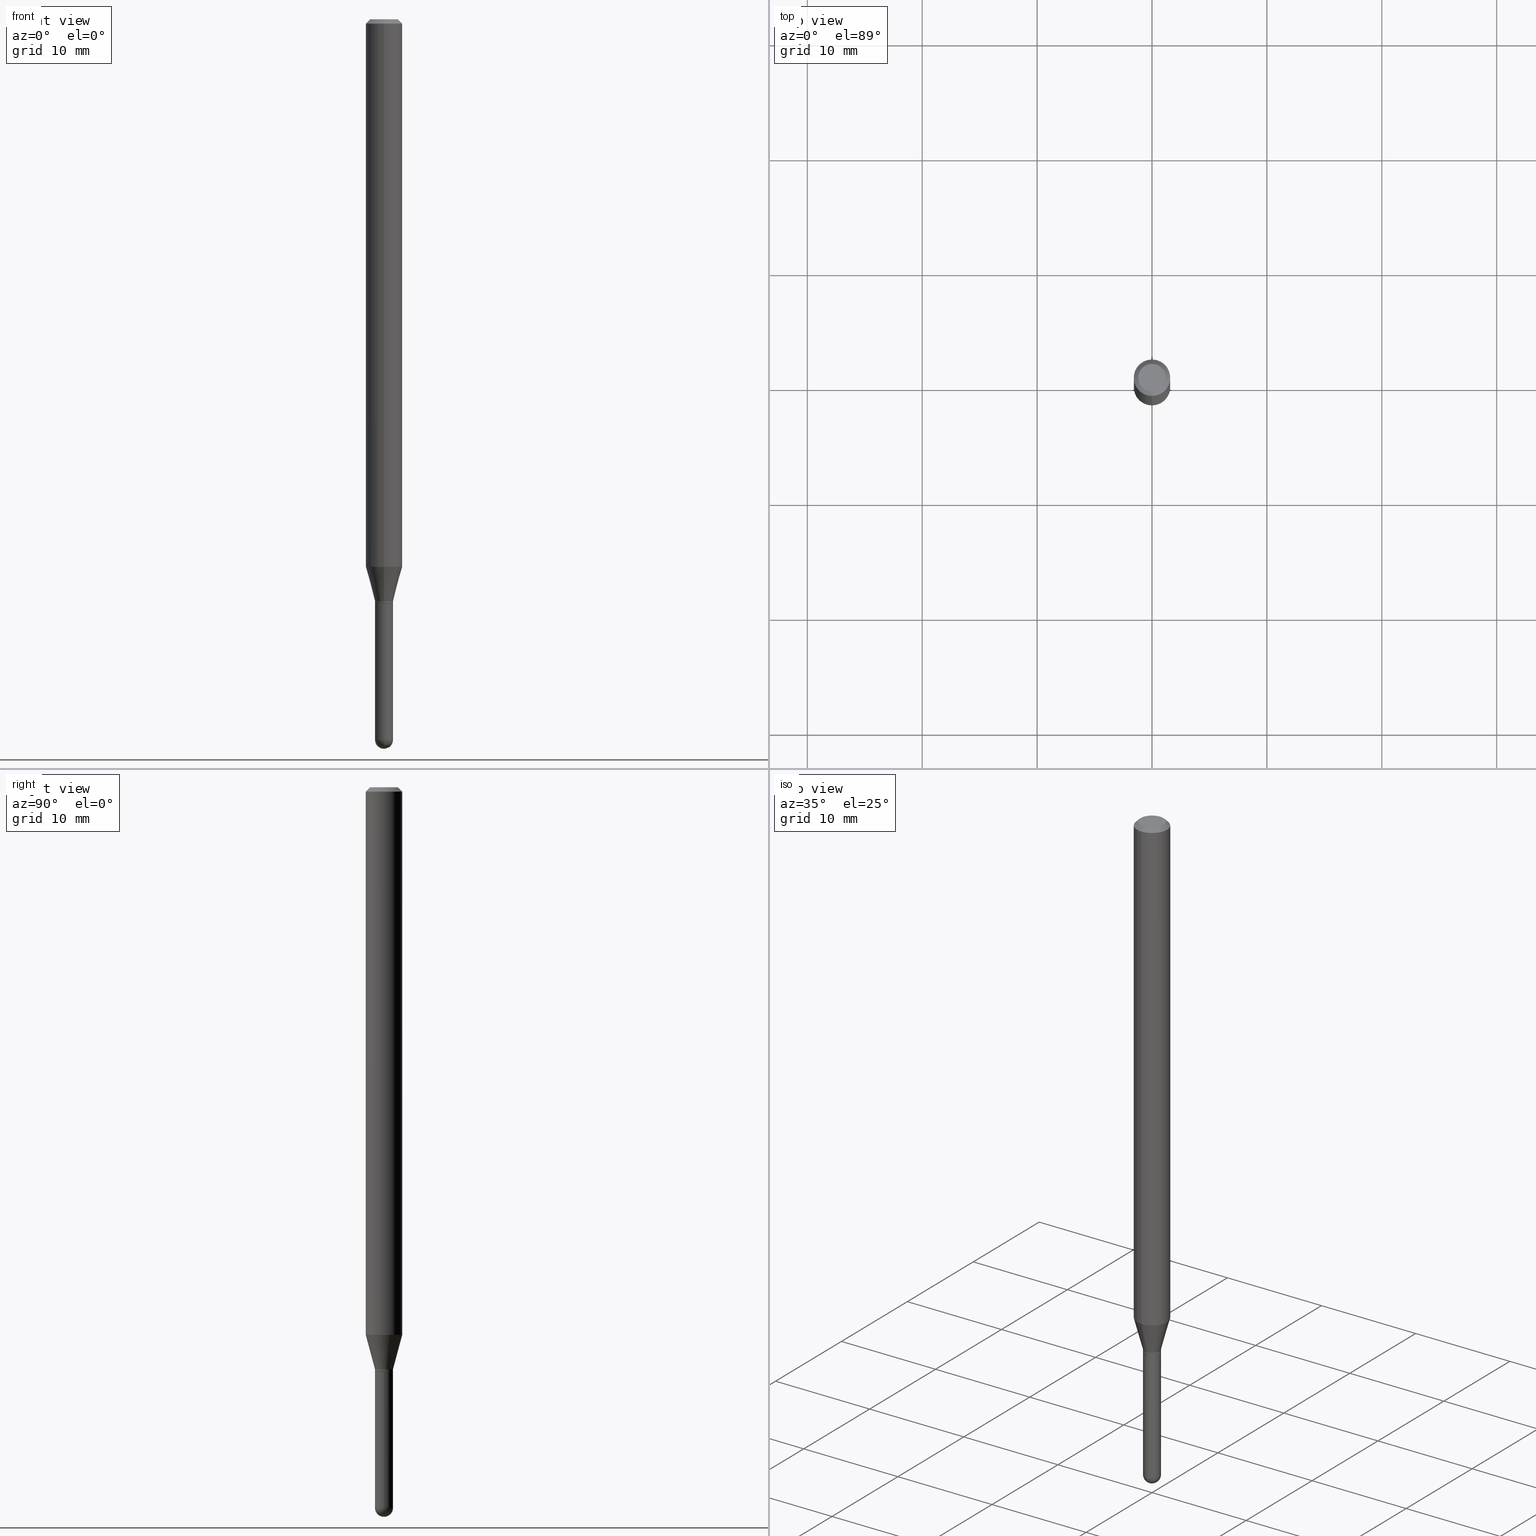
[diagram: canonical four-view strip — front | top / right | iso, engineering-drawing reading convention]
A machine part, canonical four-view strip (front | top / right | iso — engineering-drawing reading convention). The complete STEP part file that produces these views, byte-faithful:
ISO-10303-21;
HEADER;
FILE_DESCRIPTION (( 'STEP AP203' ),
    '1' );
FILE_NAME ('02760.STEP',
    '2024-03-07T21:17:46',
    ( '' ),
    ( '' ),
    'SwSTEP 2.0',
    'SolidWorks 2023',
    '' );
FILE_SCHEMA (( 'CONFIG_CONTROL_DESIGN' ));
ENDSEC;

DATA;
#1 = CYLINDRICAL_SURFACE ( 'NONE', #73, 0.03099999999999992345 ) ;
#2 = DIRECTION ( 'NONE',  ( -1.807323732225332900E-15, -0.2588190451025185745, 0.9659258262890687563 ) ) ;
#3 = DIRECTION ( 'NONE',  ( -6.982962677686265922E-15, -1.000000000000000000, 3.491454242934258058E-15 ) ) ;
#4 = PRODUCT_RELATED_PRODUCT_CATEGORY ( 'detail', '', ( #23 ) ) ;
#5 = VERTEX_POINT ( 'NONE', #381 ) ;
#6 = CARTESIAN_POINT ( 'NONE',  ( 4.440892098501086659E-16, 0.06249999999999995143, -0.01500000000000054588 ) ) ;
#7 = ORIENTED_EDGE ( 'NONE', *, *, #295, .F. ) ;
#8 = AXIS2_PLACEMENT_3D ( 'NONE', #331, #324, #288 ) ;
#9 = AXIS2_PLACEMENT_3D ( 'NONE', #453, #378, #168 ) ;
#10 = DIRECTION ( 'NONE',  ( -2.445487727157184273E-29, 3.491454242934258452E-15, 1.000000000000000000 ) ) ;
#11 = ORIENTED_EDGE ( 'NONE', *, *, #475, .T. ) ;
#12 = EDGE_LOOP ( 'NONE', ( #176, #294, #62, #485 ) ) ;
#13 = DIRECTION ( 'NONE',  ( -6.982962677686265922E-15, -1.000000000000000000, 3.483106191921935554E-15 ) ) ;
#14 = EDGE_LOOP ( 'NONE', ( #95, #376, #348, #217 ) ) ;
#15 = EDGE_CURVE ( 'NONE', #289, #126, #379, .T. ) ;
#16 = ADVANCED_BREP_SHAPE_REPRESENTATION ( '02760', ( #178, #340, #181 ), #396 ) ;
#17 = AXIS2_PLACEMENT_3D ( 'NONE', #145, #296, #384 ) ;
#18 = CIRCLE ( 'NONE', #163, 0.03049999999999999586 ) ;
#19 = DIRECTION ( 'NONE',  ( -2.445468806185136877E-29, 3.491481338843145188E-15, 1.000000000000000000 ) ) ;
#20 = VERTEX_POINT ( 'NONE', #99 ) ;
#21 = PERSON_AND_ORGANIZATION_ROLE ( 'classification_officer' ) ;
#22 = DIRECTION ( 'NONE',  ( -6.982962677686265922E-15, -1.000000000000000000, 3.491454242934258847E-15 ) ) ;
#23 = PRODUCT ( '02760', '02760', '', ( #272 ) ) ;
#24 = COORDINATED_UNIVERSAL_TIME_OFFSET ( 5, 0, .BEHIND. ) ;
#25 = AXIS2_PLACEMENT_3D ( 'NONE', #321, #201, #127 ) ;
#26 = AXIS2_PLACEMENT_3D ( 'NONE', #478, #207, #358 ) ;
#27 = DATE_AND_TIME ( #141, #209 ) ;
#28 = VERTEX_POINT ( 'NONE', #422 ) ;
#29 = CARTESIAN_POINT ( 'NONE',  ( -4.364351673553912750E-16, -0.06250000000000005551, -0.01500000000000011047 ) ) ;
#30 = DIRECTION ( 'NONE',  ( 1.000000000000000000, -6.982962677686266711E-15, 4.876176775795935232E-29 ) ) ;
#31 = EDGE_CURVE ( 'NONE', #20, #243, #341, .T. ) ;
#32 = PERSON_AND_ORGANIZATION_ROLE ( 'design_supplier' ) ;
#33 = DATE_AND_TIME ( #388, #452 ) ;
#34 = AXIS2_PLACEMENT_3D ( 'NONE', #312, #345, #504 ) ;
#35 = LOCAL_TIME ( 16, 17, 46.00000000000000000, #24 ) ;
#36 = EDGE_LOOP ( 'NONE', ( #298, #233 ) ) ;
#37 = EDGE_CURVE ( 'NONE', #339, #20, #263, .T. ) ;
#38 = DIRECTION ( 'NONE',  ( -6.982962677686265922E-15, -1.000000000000000000, 3.491454242934258452E-15 ) ) ;
#39 = DIRECTION ( 'NONE',  ( -6.982962677686265922E-15, -1.000000000000000000, 0.000000000000000000 ) ) ;
#40 = CARTESIAN_POINT ( 'NONE',  ( 4.900757405222998311E-29, -6.996874302840255482E-15, -2.004000000000000448 ) ) ;
#41 = LINE ( 'NONE', #189, #268 ) ;
#42 = DIRECTION ( 'NONE',  ( -6.982962677686265922E-15, -1.000000000000000000, 0.000000000000000000 ) ) ;
#43 = ORGANIZATION ( 'UNSPECIFIED', 'UNSPECIFIED', '' ) ;
#44 = CARTESIAN_POINT ( 'NONE',  ( 4.876302527951425860E-29, -6.961959760410912195E-15, -1.993999999999999995 ) ) ;
#45 = DIRECTION ( 'NONE',  ( -6.982962677686265922E-15, -1.000000000000000000, 3.491454242934258058E-15 ) ) ;
#46 = DIRECTION ( 'NONE',  ( 1.000000000000000000, -6.982962677686265922E-15, 4.883557194083112340E-29 ) ) ;
#47 = CARTESIAN_POINT ( 'NONE',  ( 2.202682480856811734E-16, 0.03099999999999323436, -1.993999999999999995 ) ) ;
#48 = ORIENTED_EDGE ( 'NONE', *, *, #37, .F. ) ;
#49 = ADVANCED_FACE ( 'NONE', ( #80 ), #239, .T. ) ;
#50 = LINE ( 'NONE', #412, #387 ) ;
#51 = CARTESIAN_POINT ( 'NONE',  ( 6.037862482471103495E-29, -8.620467425603728566E-15, -2.469000000000000306 ) ) ;
#52 = ORIENTED_EDGE ( 'NONE', *, *, #437, .F. ) ;
#53 = DIRECTION ( 'NONE',  ( 5.024295867785445738E-15, 0.7071067811861817543, 0.7071067811869132802 ) ) ;
#54 = CC_DESIGN_SECURITY_CLASSIFICATION ( #434, ( #512 ) ) ;
#55 = VERTEX_POINT ( 'NONE', #158 ) ;
#56 = ADVANCED_FACE ( 'NONE', ( #439 ), #245, .F. ) ;
#57 = ORIENTED_EDGE ( 'NONE', *, *, #462, .T. ) ;
#58 = DIRECTION ( 'NONE',  ( -2.445487727157184273E-29, 3.491454242934258452E-15, 1.000000000000000000 ) ) ;
#59 = CIRCLE ( 'NONE', #351, 0.03099999999999960773 ) ;
#60 = APPROVAL_PERSON_ORGANIZATION ( #313, #314, #471 ) ;
#61 = FACE_OUTER_BOUND ( 'NONE', #409, .T. ) ;
#62 = ORIENTED_EDGE ( 'NONE', *, *, #37, .T. ) ;
#63 = DATE_AND_TIME ( #509, #222 ) ;
#64 = ORIENTED_EDGE ( 'NONE', *, *, #129, .T. ) ;
#65 = AXIS2_PLACEMENT_3D ( 'NONE', #130, #82, #364 ) ;
#66 = CC_DESIGN_APPROVAL ( #149, ( #434 ) ) ;
#67 = PLANE ( 'NONE',  #116 ) ;
#68 = COORDINATED_UNIVERSAL_TIME_OFFSET ( 5, 0, .BEHIND. ) ;
#69 = DIRECTION ( 'NONE',  ( -2.445487727157184273E-29, 3.491454242934258452E-15, 1.000000000000000000 ) ) ;
#70 = EDGE_CURVE ( 'NONE', #323, #28, #98, .T. ) ;
#71 = DIRECTION ( 'NONE',  ( -6.982962677686266711E-15, -1.000000000000000000, 3.491454242934259241E-15 ) ) ;
#72 = AXIS2_PLACEMENT_3D ( 'NONE', #121, #399, #39 ) ;
#73 = AXIS2_PLACEMENT_3D ( 'NONE', #154, #476, #3 ) ;
#74 = EDGE_CURVE ( 'NONE', #20, #140, #281, .T. ) ;
#75 = CARTESIAN_POINT ( 'NONE',  ( 3.668231590735856687E-31, -5.237181364401502236E-17, -0.01500000000000032904 ) ) ;
#76 = CARTESIAN_POINT ( 'NONE',  ( -3.773273898774340269E-16, -0.04749999999999999362, -1.623041582284545326E-16 ) ) ;
#77 = DIRECTION ( 'NONE',  ( -2.445468806185136597E-29, 3.491481338843145583E-15, 1.000000000000000000 ) ) ;
#78 = DATE_AND_TIME ( #433, #276 ) ;
#79 = DIRECTION ( 'NONE',  ( 1.000000000000000000, -6.982962677686270655E-15, 0.000000000000000000 ) ) ;
#80 = FACE_OUTER_BOUND ( 'NONE', #410, .T. ) ;
#81 = VECTOR ( 'NONE', #2, 39.37007874015748854 ) ;
#82 = DIRECTION ( 'NONE',  ( -1.000000000000000000, 6.982962677686265922E-15, -4.883557194083112340E-29 ) ) ;
#83 = CARTESIAN_POINT ( 'NONE',  ( -4.287811248607203282E-16, -0.06250000000000005551, -0.01500000000000011047 ) ) ;
#84 = EDGE_LOOP ( 'NONE', ( #122, #287, #64, #464 ) ) ;
#85 = DIRECTION ( 'NONE',  ( -6.982962677686265922E-15, -1.000000000000000000, 0.000000000000000000 ) ) ;
#86 = ORIENTED_EDGE ( 'NONE', *, *, #497, .T. ) ;
#87 = DIRECTION ( 'NONE',  ( -1.000000000000000000, 6.982962677686265922E-15, -4.883557194083112340E-29 ) ) ;
#88 = EDGE_LOOP ( 'NONE', ( #369, #138, #443, #390 ) ) ;
#89 = EDGE_CURVE ( 'NONE', #140, #20, #142, .T. ) ;
#90 = DIRECTION ( 'NONE',  ( -2.445487727157184273E-29, 3.491454242934258452E-15, 1.000000000000000000 ) ) ;
#91 = AXIS2_PLACEMENT_3D ( 'NONE', #192, #225, #30 ) ;
#92 = ORIENTED_EDGE ( 'NONE', *, *, #74, .F. ) ;
#93 = CARTESIAN_POINT ( 'NONE',  ( 4.876302527951425860E-29, -6.961959760410912195E-15, -1.993999999999999995 ) ) ;
#94 = APPLICATION_CONTEXT ( 'configuration controlled 3d designs of mechanical parts and assemblies' ) ;
#95 = ORIENTED_EDGE ( 'NONE', *, *, #104, .F. ) ;
#96 = DESIGN_CONTEXT ( 'detailed design', #94, 'design' ) ;
#97 = CARTESIAN_POINT ( 'NONE',  ( 0.000000000000000000, 0.000000000000000000, 0.000000000000000000 ) ) ;
#98 = CIRCLE ( 'NONE', #171, 0.03099999999999999978 ) ;
#99 = CARTESIAN_POINT ( 'NONE',  ( -2.164718430082235482E-16, -0.03100000000000675132, -2.003500000000000281 ) ) ;
#100 = CONICAL_SURFACE ( 'NONE', #466, 0.03100000000000019407, 0.2617993877991507401 ) ;
#101 = DIRECTION ( 'NONE',  ( -6.982962677686266711E-15, -1.000000000000000000, 0.000000000000000000 ) ) ;
#102 = APPROVAL_STATUS ( 'not_yet_approved' ) ;
#103 = DATE_AND_TIME ( #180, #35 ) ;
#104 = EDGE_CURVE ( 'NONE', #414, #211, #310, .T. ) ;
#105 = CARTESIAN_POINT ( 'NONE',  ( -2.202682480855692291E-16, -0.03100000000000842360, -2.469000000000000306 ) ) ;
#106 =( NAMED_UNIT ( * ) PLANE_ANGLE_UNIT ( ) SI_UNIT ( $, .RADIAN. ) );
#107 = CIRCLE ( 'NONE', #34, 0.06250000000000000000 ) ;
#108 = FACE_OUTER_BOUND ( 'NONE', #308, .T. ) ;
#109 = DIRECTION ( 'NONE',  ( 6.982962677686265922E-15, 1.000000000000000000, -3.483106191921935554E-15 ) ) ;
#110 = ORIENTED_EDGE ( 'NONE', *, *, #277, .F. ) ;
#111 = CARTESIAN_POINT ( 'NONE',  ( 4.900757405222997751E-29, -6.996874302840254693E-15, -2.004000000000000448 ) ) ;
#112 = PERSON_AND_ORGANIZATION ( #183, #43 ) ;
#113 = APPROVAL_STATUS ( 'not_yet_approved' ) ;
#114 = ADVANCED_FACE ( 'NONE', ( #195 ), #221, .T. ) ;
#115 = DIRECTION ( 'NONE',  ( -2.445487727157184273E-29, 3.491454242934258452E-15, 1.000000000000000000 ) ) ;
#116 = AXIS2_PLACEMENT_3D ( 'NONE', #111, #224, #22 ) ;
#117 = APPROVAL_DATE_TIME ( #78, #149 ) ;
#118 = CARTESIAN_POINT ( 'NONE',  ( 4.900719487595014484E-29, -6.996928603041664772E-15, -2.004000000000000448 ) ) ;
#119 = APPLICATION_CONTEXT ( 'configuration controlled 3d designs of mechanical parts and assemblies' ) ;
#120 = PRODUCT_DEFINITION ( 'UNKNOWN', '', #512, #96 ) ;
#121 = CARTESIAN_POINT ( 'NONE',  ( 4.899534661359420081E-29, -6.995128575718787962E-15, -2.003500000000000281 ) ) ;
#122 = ORIENTED_EDGE ( 'NONE', *, *, #156, .F. ) ;
#123 = SPHERICAL_SURFACE ( 'NONE', #65, 0.03099999999999960773 ) ;
#124 = UNCERTAINTY_MEASURE_WITH_UNIT (LENGTH_MEASURE( 1.000000000000000082E-05 ), #383, 'distance_accuracy_value', 'NONE');
#125 = CARTESIAN_POINT ( 'NONE',  ( 0.000000000000000000, 0.000000000000000000, 0.000000000000000000 ) ) ;
#126 = VERTEX_POINT ( 'NONE', #357 ) ;
#127 = DIRECTION ( 'NONE',  ( -6.982962677686266711E-15, -1.000000000000000000, 0.000000000000000000 ) ) ;
#128 = ORIENTED_EDGE ( 'NONE', *, *, #70, .T. ) ;
#129 = EDGE_CURVE ( 'NONE', #243, #55, #511, .T. ) ;
#130 = CARTESIAN_POINT ( 'NONE',  ( 6.035211466974647334E-29, -8.624263830681084699E-15, -2.469000000000000306 ) ) ;
#131 = EDGE_LOOP ( 'NONE', ( #457, #362, #202, #144 ) ) ;
#132 = CARTESIAN_POINT ( 'NONE',  ( 4.440892098501081729E-16, 0.06249999999999341499, -1.876440399561582151 ) ) ;
#133 = VECTOR ( 'NONE', #242, 39.37007874015748143 ) ;
#134 = CIRCLE ( 'NONE', #327, 0.03099999999999999978 ) ;
#135 = EDGE_LOOP ( 'NONE', ( #292, #304, #52, #169 ) ) ;
#136 = CARTESIAN_POINT ( 'NONE',  ( 3.668231590735856687E-31, -5.237181364401502236E-17, -0.01500000000000032904 ) ) ;
#137 = DIRECTION ( 'NONE',  ( -6.982962677686265922E-15, -1.000000000000000000, 3.483106191921935554E-15 ) ) ;
#138 = ORIENTED_EDGE ( 'NONE', *, *, #277, .T. ) ;
#139 = APPROVAL ( #102, 'UNSPECIFIED' ) ;
#140 = VERTEX_POINT ( 'NONE', #442 ) ;
#141 = CALENDAR_DATE ( 2024, 7, 3 ) ;
#142 = CIRCLE ( 'NONE', #153, 0.03099999999999964936 ) ;
#143 = CC_DESIGN_PERSON_AND_ORGANIZATION_ASSIGNMENT ( #344, #32, ( #512 ) ) ;
#144 = ORIENTED_EDGE ( 'NONE', *, *, #472, .T. ) ;
#145 = CARTESIAN_POINT ( 'NONE',  ( 4.900719487595014484E-29, -6.996928603041664772E-15, -2.004000000000000448 ) ) ;
#146 = EDGE_CURVE ( 'NONE', #188, #416, #155, .T. ) ;
#147 = PERSON_AND_ORGANIZATION ( #183, #43 ) ;
#148 = CARTESIAN_POINT ( 'NONE',  ( 0.000000000000000000, 0.000000000000000000, 0.000000000000000000 ) ) ;
#149 = APPROVAL ( #306, 'UNSPECIFIED' ) ;
#150 = CC_DESIGN_APPROVAL ( #139, ( #120 ) ) ;
#151 = FACE_OUTER_BOUND ( 'NONE', #12, .T. ) ;
#152 = DATE_TIME_ROLE ( 'creation_date' ) ;
#153 = AXIS2_PLACEMENT_3D ( 'NONE', #320, #10, #474 ) ;
#154 = CARTESIAN_POINT ( 'NONE',  ( 0.000000000000000000, 0.000000000000000000, 0.000000000000000000 ) ) ;
#155 = LINE ( 'NONE', #83, #133 ) ;
#156 = EDGE_CURVE ( 'NONE', #420, #505, #408, .T. ) ;
#157 = FACE_OUTER_BOUND ( 'NONE', #14, .T. ) ;
#158 = CARTESIAN_POINT ( 'NONE',  ( -4.364351673553459155E-16, -0.06250000000000656419, -1.876440399561581485 ) ) ;
#159 = ORIENTED_EDGE ( 'NONE', *, *, #491, .T. ) ;
#160 = LINE ( 'NONE', #328, #299 ) ;
#161 = ORIENTED_EDGE ( 'NONE', *, *, #237, .T. ) ;
#162 = AXIS2_PLACEMENT_3D ( 'NONE', #125, #284, #45 ) ;
#163 = AXIS2_PLACEMENT_3D ( 'NONE', #251, #210, #85 ) ;
#164 = CARTESIAN_POINT ( 'NONE',  ( 0.03099999999999999978, -8.025169857330971394E-15, -2.469000000000000306 ) ) ;
#165 = EDGE_LOOP ( 'NONE', ( #330, #365, #159, #489, #212 ) ) ;
#166 = DIRECTION ( 'NONE',  ( 2.438088387897960049E-29, -3.491481338843145188E-15, -1.000000000000000000 ) ) ;
#167 = ORIENTED_EDGE ( 'NONE', *, *, #393, .F. ) ;
#168 = DIRECTION ( 'NONE',  ( 1.000000000000000000, -6.982962677686270655E-15, 0.000000000000000000 ) ) ;
#169 = ORIENTED_EDGE ( 'NONE', *, *, #182, .F. ) ;
#170 = PRODUCT_DEFINITION_SHAPE ( 'NONE', 'NONE',  #120 ) ;
#171 = AXIS2_PLACEMENT_3D ( 'NONE', #51, #77, #317 ) ;
#172 = AXIS2_PLACEMENT_3D ( 'NONE', #426, #303, #257 ) ;
#173 = DIRECTION ( 'NONE',  ( -2.445468806185136597E-29, 3.491481338843145583E-15, 1.000000000000000000 ) ) ;
#174 = ADVANCED_FACE ( 'NONE', ( #450 ), #463, .T. ) ;
#175 = DIRECTION ( 'NONE',  ( -2.445468806185136597E-29, 3.491481338843145583E-15, 1.000000000000000000 ) ) ;
#176 = ORIENTED_EDGE ( 'NONE', *, *, #389, .F. ) ;
#177 = CARTESIAN_POINT ( 'NONE',  ( 6.037862482471103495E-29, -8.620467425603728566E-15, -2.469000000000000306 ) ) ;
#178 = MANIFOLD_SOLID_BREP ( 'Body-Move/Copy2[1]', #191 ) ;
#179 = AXIS2_PLACEMENT_3D ( 'NONE', #391, #473, #109 ) ;
#180 = CALENDAR_DATE ( 2024, 7, 3 ) ;
#181 = AXIS2_PLACEMENT_3D ( 'NONE', #301, #460, #184 ) ;
#182 = EDGE_CURVE ( 'NONE', #55, #416, #186, .T. ) ;
#183 = PERSON ( 'UNSPECIFIED', 'UNSPECIFIED', 'UNSPECIFIED', ('UNSPECIFIED'), ('UNSPECIFIED'), ('UNSPECIFIED') ) ;
#184 = DIRECTION ( 'NONE',  ( 1.000000000000000000, 0.000000000000000000, 0.000000000000000000 ) ) ;
#185 = ORIENTED_EDGE ( 'NONE', *, *, #472, .F. ) ;
#186 = LINE ( 'NONE', #470, #413 ) ;
#187 = PERSON_AND_ORGANIZATION ( #183, #43 ) ;
#188 = VERTEX_POINT ( 'NONE', #76 ) ;
#189 = CARTESIAN_POINT ( 'NONE',  ( 4.364351673553919652E-16, 0.06249999999999995143, -0.01500000000000054588 ) ) ;
#190 = PERSON_AND_ORGANIZATION_ROLE ( 'creator' ) ;
#191 = CLOSED_SHELL ( 'NONE', ( #510, #373, #291, #261, #174 ) ) ;
#192 = CARTESIAN_POINT ( 'NONE',  ( 0.000000000000000000, 0.000000000000000000, 0.000000000000000000 ) ) ;
#193 = CARTESIAN_POINT ( 'NONE',  ( -0.03099999999999999978, -7.588429766237065021E-15, -2.469000000000000306 ) ) ;
#194 = DIRECTION ( 'NONE',  ( -2.445487727157184273E-29, 3.491454242934258452E-15, 1.000000000000000000 ) ) ;
#195 = FACE_OUTER_BOUND ( 'NONE', #495, .T. ) ;
#196 = FACE_OUTER_BOUND ( 'NONE', #36, .T. ) ;
#197 = CYLINDRICAL_SURFACE ( 'NONE', #26, 0.06250000000000000000 ) ;
#198 = EDGE_CURVE ( 'NONE', #5, #255, #41, .T. ) ;
#199 = CARTESIAN_POINT ( 'NONE',  ( -2.164718430082268516E-16, -0.03100000000000715725, -1.993999999999999995 ) ) ;
#200 = CIRCLE ( 'NONE', #318, 0.06250000000000000000 ) ;
#201 = DIRECTION ( 'NONE',  ( -2.445487727157184273E-29, 3.491454242934258452E-15, 1.000000000000000000 ) ) ;
#202 = ORIENTED_EDGE ( 'NONE', *, *, #198, .T. ) ;
#203 = DIRECTION ( 'NONE',  ( 6.982962677686265922E-15, 1.000000000000000000, 0.000000000000000000 ) ) ;
#204 = DIRECTION ( 'NONE',  ( 1.839019923739603471E-15, 0.2588190451025254024, 0.9659258262890670910 ) ) ;
#205 = EDGE_LOOP ( 'NONE', ( #480, #248 ) ) ;
#206 = EDGE_CURVE ( 'NONE', #323, #126, #349, .T. ) ;
#207 = DIRECTION ( 'NONE',  ( -2.445487727157184273E-29, 3.491454242934258452E-15, 1.000000000000000000 ) ) ;
#208 = ORIENTED_EDGE ( 'NONE', *, *, #497, .F. ) ;
#209 = LOCAL_TIME ( 16, 17, 46.00000000000000000, #496 ) ;
#210 = DIRECTION ( 'NONE',  ( -2.445487727157184273E-29, 3.491454242934258452E-15, 1.000000000000000000 ) ) ;
#211 = VERTEX_POINT ( 'NONE', #105 ) ;
#212 = ORIENTED_EDGE ( 'NONE', *, *, #15, .F. ) ;
#213 = EDGE_CURVE ( 'NONE', #505, #55, #107, .T. ) ;
#214 = VECTOR ( 'NONE', #204, 39.37007874015748143 ) ;
#215 = CIRCLE ( 'NONE', #9, 0.03099999999999999978 ) ;
#216 = DIRECTION ( 'NONE',  ( -6.982962677686265922E-15, -1.000000000000000000, 0.000000000000000000 ) ) ;
#217 = ORIENTED_EDGE ( 'NONE', *, *, #491, .F. ) ;
#218 =( LENGTH_UNIT ( ) NAMED_UNIT ( * ) SI_UNIT ( $, .METRE. ) );
#219 = ADVANCED_FACE ( 'NONE', ( #430 ), #275, .T. ) ;
#220 = CARTESIAN_POINT ( 'NONE',  ( -2.129803616693820695E-16, -0.03050000000000699374, -2.004000000000000448 ) ) ;
#221 = CONICAL_SURFACE ( 'NONE', #258, 0.03049999999999999586, 0.7853981633969275844 ) ;
#222 = LOCAL_TIME ( 16, 17, 46.00000000000000000, #353 ) ;
#223 = ORIENTED_EDGE ( 'NONE', *, *, #254, .F. ) ;
#224 = DIRECTION ( 'NONE',  ( -2.445487727157183713E-29, 3.491454242934258847E-15, 1.000000000000000000 ) ) ;
#225 = DIRECTION ( 'NONE',  ( -2.445468806185136597E-29, 3.491481338843145583E-15, 1.000000000000000000 ) ) ;
#226 = DIRECTION ( 'NONE',  ( -6.982962677686266711E-15, -1.000000000000000000, 3.491454242934259241E-15 ) ) ;
#227 = PERSON_AND_ORGANIZATION_ROLE ( 'design_owner' ) ;
#228 = ADVANCED_FACE ( 'NONE', ( #435 ), #234, .T. ) ;
#229 = APPLICATION_PROTOCOL_DEFINITION ( 'international standard', 'config_control_design', 1994, #94 ) ;
#230 = CIRCLE ( 'NONE', #8, 0.03099999999999999978 ) ;
#231 = AXIS2_PLACEMENT_3D ( 'NONE', #97, #175, #338 ) ;
#232 = VECTOR ( 'NONE', #19, 39.37007874015748143 ) ;
#233 = ORIENTED_EDGE ( 'NONE', *, *, #446, .F. ) ;
#234 = CYLINDRICAL_SURFACE ( 'NONE', #249, 0.06250000000000000000 ) ;
#235 = CC_DESIGN_DATE_AND_TIME_ASSIGNMENT ( #27, #503, ( #434 ) ) ;
#236 = DIRECTION ( 'NONE',  ( 2.445487727157184273E-29, -3.491454242934258452E-15, -1.000000000000000000 ) ) ;
#237 = EDGE_CURVE ( 'NONE', #5, #188, #432, .T. ) ;
#238 = CARTESIAN_POINT ( 'NONE',  ( 6.035211466974647334E-29, -8.624263830681084699E-15, -2.469000000000000306 ) ) ;
#239 = CYLINDRICAL_SURFACE ( 'NONE', #162, 0.03099999999999992345 ) ;
#240 = APPROVAL_PERSON_ORGANIZATION ( #395, #139, #346 ) ;
#241 = CARTESIAN_POINT ( 'NONE',  ( -0.03099999999999999978, -7.588429766237065021E-15, -2.004000000000000448 ) ) ;
#242 = DIRECTION ( 'NONE',  ( -4.851104656540964275E-15, -0.7071067811865500152, -0.7071067811865450192 ) ) ;
#243 = VERTEX_POINT ( 'NONE', #356 ) ;
#244 = FACE_OUTER_BOUND ( 'NONE', #88, .T. ) ;
#245 = PLANE ( 'NONE',  #290 ) ;
#246 = ORIENTED_EDGE ( 'NONE', *, *, #507, .F. ) ;
#247 = DIRECTION ( 'NONE',  ( 6.982962677686265922E-15, 1.000000000000000000, 0.000000000000000000 ) ) ;
#248 = ORIENTED_EDGE ( 'NONE', *, *, #15, .T. ) ;
#249 = AXIS2_PLACEMENT_3D ( 'NONE', #148, #398, #38 ) ;
#250 = AXIS2_PLACEMENT_3D ( 'NONE', #177, #173, #334 ) ;
#251 = CARTESIAN_POINT ( 'NONE',  ( 4.900757405222998311E-29, -6.996874302840255482E-15, -2.004000000000000448 ) ) ;
#252 = VERTEX_POINT ( 'NONE', #269 ) ;
#253 = DIRECTION ( 'NONE',  ( -2.445487727157183993E-29, 3.491454242934258847E-15, 1.000000000000000000 ) ) ;
#254 = EDGE_CURVE ( 'NONE', #188, #5, #498, .T. ) ;
#255 = VERTEX_POINT ( 'NONE', #6 ) ;
#256 = LINE ( 'NONE', #418, #232 ) ;
#257 = DIRECTION ( 'NONE',  ( -6.982962677686266711E-15, -1.000000000000000000, 0.000000000000000000 ) ) ;
#258 = AXIS2_PLACEMENT_3D ( 'NONE', #479, #115, #42 ) ;
#259 = CIRCLE ( 'NONE', #404, 0.06250000000000000000 ) ;
#260 = CYLINDRICAL_SURFACE ( 'NONE', #231, 0.03099999999999999978 ) ;
#261 = ADVANCED_FACE ( 'NONE', ( #157 ), #123, .T. ) ;
#262 = ORIENTED_EDGE ( 'NONE', *, *, #206, .F. ) ;
#263 = LINE ( 'NONE', #220, #440 ) ;
#264 = APPROVAL_DATE_TIME ( #103, #314 ) ;
#265 = ORIENTED_EDGE ( 'NONE', *, *, #389, .T. ) ;
#266 = DIRECTION ( 'NONE',  ( -6.982962677686265922E-15, -1.000000000000000000, 0.000000000000000000 ) ) ;
#267 = APPROVAL_ROLE ( '' ) ;
#268 = VECTOR ( 'NONE', #352, 39.37007874015748143 ) ;
#269 = CARTESIAN_POINT ( 'NONE',  ( 2.184918912462781357E-16, 0.03049999999999300146, -2.004000000000000448 ) ) ;
#270 = AXIS2_PLACEMENT_3D ( 'NONE', #40, #305, #266 ) ;
#271 = DIRECTION ( 'NONE',  ( 6.982962677686265922E-15, 1.000000000000000000, -3.483106191921935554E-15 ) ) ;
#272 = MECHANICAL_CONTEXT ( 'NONE', #119, 'mechanical' ) ;
#273 = ADVANCED_FACE ( 'NONE', ( #279 ), #458, .T. ) ;
#274 = CC_DESIGN_PERSON_AND_ORGANIZATION_ASSIGNMENT ( #112, #21, ( #434 ) ) ;
#275 = CONICAL_SURFACE ( 'NONE', #179, 0.06250000000000000000, 0.7853981633974483900 ) ;
#276 = LOCAL_TIME ( 16, 17, 46.00000000000000000, #68 ) ;
#277 = EDGE_CURVE ( 'NONE', #140, #420, #160, .T. ) ;
#278 = DIRECTION ( 'NONE',  ( -4.937700262161976356E-15, -0.7071067811861768693, 0.7071067811869181652 ) ) ;
#279 = FACE_OUTER_BOUND ( 'NONE', #84, .T. ) ;
#280 = ORIENTED_EDGE ( 'NONE', *, *, #198, .F. ) ;
#281 = CIRCLE ( 'NONE', #72, 0.03099999999999964936 ) ;
#282 = VECTOR ( 'NONE', #253, 39.37007874015748143 ) ;
#283 = DIRECTION ( 'NONE',  ( -1.000000000000000000, 6.982962677686265922E-15, -4.876176775795935793E-29 ) ) ;
#284 = DIRECTION ( 'NONE',  ( -2.445487727157184273E-29, 3.491454242934258452E-15, 1.000000000000000000 ) ) ;
#285 = ORIENTED_EDGE ( 'NONE', *, *, #104, .T. ) ;
#286 = CARTESIAN_POINT ( 'NONE',  ( 6.035211466974647334E-29, -8.624263830681084699E-15, -2.469000000000000306 ) ) ;
#287 = ORIENTED_EDGE ( 'NONE', *, *, #316, .T. ) ;
#288 = DIRECTION ( 'NONE',  ( 1.000000000000000000, -6.982962677686270655E-15, 0.000000000000000000 ) ) ;
#289 = VERTEX_POINT ( 'NONE', #241 ) ;
#290 = AXIS2_PLACEMENT_3D ( 'NONE', #406, #322, #360 ) ;
#291 = ADVANCED_FACE ( 'NONE', ( #407 ), #319, .F. ) ;
#292 = ORIENTED_EDGE ( 'NONE', *, *, #393, .T. ) ;
#293 = DIRECTION ( 'NONE',  ( -2.445487727157184273E-29, 3.491454242934258452E-15, 1.000000000000000000 ) ) ;
#294 = ORIENTED_EDGE ( 'NONE', *, *, #446, .T. ) ;
#295 = EDGE_CURVE ( 'NONE', #414, #28, #59, .T. ) ;
#296 = DIRECTION ( 'NONE',  ( -2.445468806185136597E-29, 3.491481338843145583E-15, 1.000000000000000000 ) ) ;
#297 = DIRECTION ( 'NONE',  ( -2.445487727157184273E-29, 3.491454242934258452E-15, 1.000000000000000000 ) ) ;
#298 = ORIENTED_EDGE ( 'NONE', *, *, #333, .F. ) ;
#299 = VECTOR ( 'NONE', #484, 39.37007874015748143 ) ;
#300 = CC_DESIGN_APPROVAL ( #314, ( #512 ) ) ;
#301 = CARTESIAN_POINT ( 'NONE',  ( 0.000000000000000000, 0.000000000000000000, 0.000000000000000000 ) ) ;
#302 = CARTESIAN_POINT ( 'NONE',  ( -2.164718430082737148E-16, -0.03099999999999992345, 1.082350815309617307E-16 ) ) ;
#303 = DIRECTION ( 'NONE',  ( -2.445487727157184273E-29, 3.491454242934258452E-15, 1.000000000000000000 ) ) ;
#304 = ORIENTED_EDGE ( 'NONE', *, *, #507, .T. ) ;
#305 = DIRECTION ( 'NONE',  ( -2.445487727157184273E-29, 3.491454242934258452E-15, 1.000000000000000000 ) ) ;
#306 = APPROVAL_STATUS ( 'not_yet_approved' ) ;
#307 = CARTESIAN_POINT ( 'NONE',  ( 8.024824808130270648E-45, -1.145714546591533563E-30, -3.281482347678318160E-16 ) ) ;
#308 = EDGE_LOOP ( 'NONE', ( #223, #483, #332, #280 ) ) ;
#309 = EDGE_CURVE ( 'NONE', #397, #211, #230, .T. ) ;
#310 = CIRCLE ( 'NONE', #465, 0.03099999999999960773 ) ;
#311 = DIRECTION ( 'NONE',  ( -6.982962677686265922E-15, -1.000000000000000000, 4.370956789862821150E-15 ) ) ;
#312 = CARTESIAN_POINT ( 'NONE',  ( 4.588811967869771303E-29, -6.551505794662540099E-15, -1.876440399561581707 ) ) ;
#313 = PERSON_AND_ORGANIZATION ( #183, #43 ) ;
#314 = APPROVAL ( #113, 'UNSPECIFIED' ) ;
#315 = DIRECTION ( 'NONE',  ( -2.445487727157184273E-29, 3.491454242934258452E-15, 1.000000000000000000 ) ) ;
#316 = EDGE_CURVE ( 'NONE', #420, #243, #482, .T. ) ;
#317 = DIRECTION ( 'NONE',  ( 1.000000000000000000, -6.982962677686270655E-15, 0.000000000000000000 ) ) ;
#318 = AXIS2_PLACEMENT_3D ( 'NONE', #455, #375, #13 ) ;
#319 = PLANE ( 'NONE',  #403 ) ;
#320 = CARTESIAN_POINT ( 'NONE',  ( 4.899534661359420081E-29, -6.995128575718787962E-15, -2.003500000000000281 ) ) ;
#321 = CARTESIAN_POINT ( 'NONE',  ( 4.876302527951425860E-29, -6.961959760410912195E-15, -1.993999999999999995 ) ) ;
#322 = DIRECTION ( 'NONE',  ( 2.445487727157183713E-29, -3.491454242934258847E-15, -1.000000000000000000 ) ) ;
#323 = VERTEX_POINT ( 'NONE', #164 ) ;
#324 = DIRECTION ( 'NONE',  ( -2.445468806185136597E-29, 3.491481338843145583E-15, 1.000000000000000000 ) ) ;
#325 = ORIENTED_EDGE ( 'NONE', *, *, #333, .T. ) ;
#326 = AXIS2_PLACEMENT_3D ( 'NONE', #307, #194, #71 ) ;
#327 = AXIS2_PLACEMENT_3D ( 'NONE', #118, #438, #79 ) ;
#328 = CARTESIAN_POINT ( 'NONE',  ( 2.202682480856304644E-16, 0.03099999999999992345, -1.082350815309617307E-16 ) ) ;
#329 = CC_DESIGN_PERSON_AND_ORGANIZATION_ASSIGNMENT ( #372, #424, ( #512 ) ) ;
#330 = ORIENTED_EDGE ( 'NONE', *, *, #475, .F. ) ;
#331 = CARTESIAN_POINT ( 'NONE',  ( 6.037862482471103495E-29, -8.620467425603728566E-15, -2.469000000000000306 ) ) ;
#332 = ORIENTED_EDGE ( 'NONE', *, *, #437, .T. ) ;
#333 = EDGE_CURVE ( 'NONE', #339, #252, #18, .T. ) ;
#334 = DIRECTION ( 'NONE',  ( 1.000000000000000000, -6.982962677686270655E-15, 0.000000000000000000 ) ) ;
#335 = ORIENTED_EDGE ( 'NONE', *, *, #31, .T. ) ;
#336 = LINE ( 'NONE', #492, #282 ) ;
#337 = ORIENTED_EDGE ( 'NONE', *, *, #363, .F. ) ;
#338 = DIRECTION ( 'NONE',  ( 1.000000000000000000, -6.982962677686266711E-15, 4.876176775795935232E-29 ) ) ;
#339 = VERTEX_POINT ( 'NONE', #415 ) ;
#340 = MANIFOLD_SOLID_BREP ( 'Body-Move/Copy2[2]', #342 ) ;
#341 = LINE ( 'NONE', #302, #367 ) ;
#342 = CLOSED_SHELL ( 'NONE', ( #355, #114, #405, #347, #456, #273, #228, #219, #56, #427, #411, #49 ) ) ;
#343 = AXIS2_PLACEMENT_3D ( 'NONE', #44, #90, #449 ) ;
#344 = PERSON_AND_ORGANIZATION ( #183, #43 ) ;
#345 = DIRECTION ( 'NONE',  ( -2.445487727157184273E-29, 3.491454242934258452E-15, 1.000000000000000000 ) ) ;
#346 = APPROVAL_ROLE ( '' ) ;
#347 = ADVANCED_FACE ( 'NONE', ( #361 ), #197, .T. ) ;
#348 = ORIENTED_EDGE ( 'NONE', *, *, #70, .F. ) ;
#349 = LINE ( 'NONE', #467, #394 ) ;
#350 = CARTESIAN_POINT ( 'NONE',  ( 3.321787289678948580E-16, 0.03099999999999323436, -1.993999999999999995 ) ) ;
#351 = AXIS2_PLACEMENT_3D ( 'NONE', #444, #46, #203 ) ;
#352 = DIRECTION ( 'NONE',  ( 4.937700262164548042E-15, 0.7071067811865451302, -0.7071067811865499042 ) ) ;
#353 = COORDINATED_UNIVERSAL_TIME_OFFSET ( 5, 0, .BEHIND. ) ;
#354 = CIRCLE ( 'NONE', #250, 0.03099999999999999978 ) ;
#355 = ADVANCED_FACE ( 'NONE', ( #244 ), #1, .T. ) ;
#356 = CARTESIAN_POINT ( 'NONE',  ( -2.164718430082268516E-16, -0.03100000000000715725, -1.993999999999999995 ) ) ;
#357 = CARTESIAN_POINT ( 'NONE',  ( 0.03099999999999999978, -7.213400446049938314E-15, -2.004000000000000448 ) ) ;
#358 = DIRECTION ( 'NONE',  ( -6.982962677686265922E-15, -1.000000000000000000, 3.491454242934258452E-15 ) ) ;
#359 = CIRCLE ( 'NONE', #421, 0.06250000000000000000 ) ;
#360 = DIRECTION ( 'NONE',  ( 6.982962677686265922E-15, 1.000000000000000000, -3.491454242934258847E-15 ) ) ;
#361 = FACE_OUTER_BOUND ( 'NONE', #135, .T. ) ;
#362 = ORIENTED_EDGE ( 'NONE', *, *, #237, .F. ) ;
#363 = EDGE_CURVE ( 'NONE', #126, #289, #134, .T. ) ;
#364 = DIRECTION ( 'NONE',  ( 6.982962677686265922E-15, 1.000000000000000000, 0.000000000000000000 ) ) ;
#365 = ORIENTED_EDGE ( 'NONE', *, *, #309, .T. ) ;
#366 = SPHERICAL_SURFACE ( 'NONE', #490, 0.03099999999999960773 ) ;
#367 = VECTOR ( 'NONE', #461, 39.37007874015748143 ) ;
#368 = DIRECTION ( 'NONE',  ( -7.105427357601000281E-15, -1.000000000000000000, 0.000000000000000000 ) ) ;
#369 = ORIENTED_EDGE ( 'NONE', *, *, #74, .T. ) ;
#370 = AXIS2_PLACEMENT_3D ( 'NONE', #488, #293, #216 ) ;
#371 = CARTESIAN_POINT ( 'NONE',  ( 4.588811967869771303E-29, -6.551505794662540099E-15, -1.876440399561581707 ) ) ;
#372 = PERSON_AND_ORGANIZATION ( #183, #43 ) ;
#373 = ADVANCED_FACE ( 'NONE', ( #447 ), #366, .T. ) ;
#374 = EDGE_LOOP ( 'NONE', ( #57, #377, #167, #487 ) ) ;
#375 = DIRECTION ( 'NONE',  ( -2.445487727157184273E-29, 3.491454242934258452E-15, 1.000000000000000000 ) ) ;
#376 = ORIENTED_EDGE ( 'NONE', *, *, #295, .T. ) ;
#377 = ORIENTED_EDGE ( 'NONE', *, *, #156, .T. ) ;
#378 = DIRECTION ( 'NONE',  ( -2.445468806185136597E-29, 3.491481338843145583E-15, 1.000000000000000000 ) ) ;
#379 = CIRCLE ( 'NONE', #17, 0.03099999999999999978 ) ;
#380 = CIRCLE ( 'NONE', #370, 0.03049999999999999586 ) ;
#381 = CARTESIAN_POINT ( 'NONE',  ( 3.840629472727447874E-16, 0.04749999999999999362, -4.939923113072091241E-16 ) ) ;
#382 = ORIENTED_EDGE ( 'NONE', *, *, #182, .T. ) ;
#383 =( CONVERSION_BASED_UNIT ( 'INCH', #486 ) LENGTH_UNIT ( ) NAMED_UNIT ( #477 ) );
#384 = DIRECTION ( 'NONE',  ( 1.000000000000000000, -6.982962677686270655E-15, 0.000000000000000000 ) ) ;
#385 = PERSON_AND_ORGANIZATION ( #183, #43 ) ;
#386 = AXIS2_PLACEMENT_3D ( 'NONE', #429, #69, #226 ) ;
#387 = VECTOR ( 'NONE', #53, 39.37007874015748143 ) ;
#388 = CALENDAR_DATE ( 2024, 7, 3 ) ;
#389 = EDGE_CURVE ( 'NONE', #252, #140, #50, .T. ) ;
#390 = ORIENTED_EDGE ( 'NONE', *, *, #31, .F. ) ;
#391 = CARTESIAN_POINT ( 'NONE',  ( 3.668231590735856687E-31, -5.237181364401502236E-17, -0.01500000000000032904 ) ) ;
#392 = COORDINATED_UNIVERSAL_TIME_OFFSET ( 5, 0, .BEHIND. ) ;
#393 = EDGE_CURVE ( 'NONE', #55, #505, #359, .T. ) ;
#394 = VECTOR ( 'NONE', #508, 39.37007874015748143 ) ;
#395 = PERSON_AND_ORGANIZATION ( #183, #43 ) ;
#396 =( GEOMETRIC_REPRESENTATION_CONTEXT ( 3 ) GLOBAL_UNCERTAINTY_ASSIGNED_CONTEXT ( ( #124 ) ) GLOBAL_UNIT_ASSIGNED_CONTEXT ( ( #383, #106, #468 ) ) REPRESENTATION_CONTEXT ( 'NONE', 'WORKASPACE' ) );
#397 = VERTEX_POINT ( 'NONE', #193 ) ;
#398 = DIRECTION ( 'NONE',  ( -2.445487727157184273E-29, 3.491454242934258452E-15, 1.000000000000000000 ) ) ;
#399 = DIRECTION ( 'NONE',  ( -2.445487727157184273E-29, 3.491454242934258452E-15, 1.000000000000000000 ) ) ;
#400 = DIRECTION ( 'NONE',  ( -1.000000000000000000, 7.105427357601001070E-15, -4.926315508542082329E-29 ) ) ;
#401 = SHAPE_DEFINITION_REPRESENTATION ( #170, #16 ) ;
#402 = CARTESIAN_POINT ( 'NONE',  ( 2.164718430083232405E-16, 0.03099999999999300190, -2.004000000000000448 ) ) ;
#403 = AXIS2_PLACEMENT_3D ( 'NONE', #402, #166, #283 ) ;
#404 = AXIS2_PLACEMENT_3D ( 'NONE', #136, #58, #137 ) ;
#405 = ADVANCED_FACE ( 'NONE', ( #108 ), #506, .T. ) ;
#406 = CARTESIAN_POINT ( 'NONE',  ( 3.316907271900976096E-16, 0.04749999999999999362, -3.299181939232931421E-16 ) ) ;
#407 = FACE_OUTER_BOUND ( 'NONE', #205, .T. ) ;
#408 = LINE ( 'NONE', #47, #214 ) ;
#409 = EDGE_LOOP ( 'NONE', ( #86, #11, #337, #262, #128 ) ) ;
#410 = EDGE_LOOP ( 'NONE', ( #110, #448, #335, #451 ) ) ;
#411 = ADVANCED_FACE ( 'NONE', ( #151 ), #459, .T. ) ;
#412 = CARTESIAN_POINT ( 'NONE',  ( 2.167155344068795106E-16, 0.03049999999999300146, -2.004000000000000448 ) ) ;
#413 = VECTOR ( 'NONE', #436, 39.37007874015748143 ) ;
#414 = VERTEX_POINT ( 'NONE', #431 ) ;
#415 = CARTESIAN_POINT ( 'NONE',  ( -2.129803616693820695E-16, -0.03050000000000699374, -2.004000000000000448 ) ) ;
#416 = VERTEX_POINT ( 'NONE', #29 ) ;
#417 = EDGE_LOOP ( 'NONE', ( #246, #502, #382, #185 ) ) ;
#418 = CARTESIAN_POINT ( 'NONE',  ( -0.03099999999999999978, 2.202682480856310560E-16, -1.524869877979020612E-30 ) ) ;
#419 = CC_DESIGN_PERSON_AND_ORGANIZATION_ASSIGNMENT ( #187, #227, ( #23 ) ) ;
#420 = VERTEX_POINT ( 'NONE', #350 ) ;
#421 = AXIS2_PLACEMENT_3D ( 'NONE', #371, #315, #311 ) ;
#422 = CARTESIAN_POINT ( 'NONE',  ( 2.164718430083332245E-16, 0.03099999999999118044, -2.469000000000000306 ) ) ;
#423 = ORIENTED_EDGE ( 'NONE', *, *, #309, .F. ) ;
#424 = PERSON_AND_ORGANIZATION_ROLE ( 'creator' ) ;
#425 = APPROVAL_DATE_TIME ( #33, #139 ) ;
#426 = CARTESIAN_POINT ( 'NONE',  ( 4.876302527951425860E-29, -6.961959760410912195E-15, -1.993999999999999995 ) ) ;
#427 = ADVANCED_FACE ( 'NONE', ( #196 ), #67, .F. ) ;
#428 = AXIS2_PLACEMENT_3D ( 'NONE', #75, #236, #271 ) ;
#429 = CARTESIAN_POINT ( 'NONE',  ( 8.024824808130270648E-45, -1.145714546591533563E-30, -3.281482347678318160E-16 ) ) ;
#430 = FACE_OUTER_BOUND ( 'NONE', #131, .T. ) ;
#431 = CARTESIAN_POINT ( 'NONE',  ( 6.112346507714612851E-29, -8.730601549646543009E-15, -2.500000000000000000 ) ) ;
#432 = CIRCLE ( 'NONE', #326, 0.04749999999999999362 ) ;
#433 = CALENDAR_DATE ( 2024, 7, 3 ) ;
#434 = SECURITY_CLASSIFICATION ( '', '', #469 ) ;
#435 = FACE_OUTER_BOUND ( 'NONE', #417, .T. ) ;
#436 = DIRECTION ( 'NONE',  ( -2.445487727157183993E-29, 3.491454242934258847E-15, 1.000000000000000000 ) ) ;
#437 = EDGE_CURVE ( 'NONE', #416, #255, #259, .T. ) ;
#438 = DIRECTION ( 'NONE',  ( -2.445468806185136597E-29, 3.491481338843145583E-15, 1.000000000000000000 ) ) ;
#439 = FACE_OUTER_BOUND ( 'NONE', #493, .T. ) ;
#440 = VECTOR ( 'NONE', #278, 39.37007874015748143 ) ;
#441 = CIRCLE ( 'NONE', #172, 0.03100000000000019407 ) ;
#442 = CARTESIAN_POINT ( 'NONE',  ( 2.202682480856767853E-16, 0.03099999999999254741, -2.003500000000000281 ) ) ;
#443 = ORIENTED_EDGE ( 'NONE', *, *, #462, .F. ) ;
#444 = CARTESIAN_POINT ( 'NONE',  ( 6.035211466974647334E-29, -8.624263830681084699E-15, -2.469000000000000306 ) ) ;
#445 = ORIENTED_EDGE ( 'NONE', *, *, #254, .T. ) ;
#446 = EDGE_CURVE ( 'NONE', #252, #339, #380, .T. ) ;
#447 = FACE_OUTER_BOUND ( 'NONE', #454, .T. ) ;
#448 = ORIENTED_EDGE ( 'NONE', *, *, #89, .T. ) ;
#449 = DIRECTION ( 'NONE',  ( -6.982962677686266711E-15, -1.000000000000000000, 0.000000000000000000 ) ) ;
#450 = FACE_OUTER_BOUND ( 'NONE', #165, .T. ) ;
#451 = ORIENTED_EDGE ( 'NONE', *, *, #316, .F. ) ;
#452 = LOCAL_TIME ( 16, 17, 46.00000000000000000, #392 ) ;
#453 = CARTESIAN_POINT ( 'NONE',  ( 6.037862482471103495E-29, -8.620467425603728566E-15, -2.469000000000000306 ) ) ;
#454 = EDGE_LOOP ( 'NONE', ( #7, #285, #423, #208 ) ) ;
#455 = CARTESIAN_POINT ( 'NONE',  ( 3.668231590735856687E-31, -5.237181364401502236E-17, -0.01500000000000032904 ) ) ;
#456 = ADVANCED_FACE ( 'NONE', ( #499 ), #100, .T. ) ;
#457 = ORIENTED_EDGE ( 'NONE', *, *, #146, .F. ) ;
#458 = CONICAL_SURFACE ( 'NONE', #25, 0.03100000000000019407, 0.2617993877991507401 ) ;
#459 = CONICAL_SURFACE ( 'NONE', #270, 0.03049999999999999586, 0.7853981633969275844 ) ;
#460 = DIRECTION ( 'NONE',  ( 0.000000000000000000, 0.000000000000000000, 1.000000000000000000 ) ) ;
#461 = DIRECTION ( 'NONE',  ( -2.445487727157183993E-29, 3.491454242934258847E-15, 1.000000000000000000 ) ) ;
#462 = EDGE_CURVE ( 'NONE', #243, #420, #441, .T. ) ;
#463 = CYLINDRICAL_SURFACE ( 'NONE', #91, 0.03099999999999999978 ) ;
#464 = ORIENTED_EDGE ( 'NONE', *, *, #213, .F. ) ;
#465 = AXIS2_PLACEMENT_3D ( 'NONE', #238, #400, #368 ) ;
#466 = AXIS2_PLACEMENT_3D ( 'NONE', #93, #297, #101 ) ;
#467 = CARTESIAN_POINT ( 'NONE',  ( 0.03099999999999999978, -2.164718430082742572E-16, 1.511614800496739984E-30 ) ) ;
#468 =( NAMED_UNIT ( * ) SI_UNIT ( $, .STERADIAN. ) SOLID_ANGLE_UNIT ( ) );
#469 = SECURITY_CLASSIFICATION_LEVEL ( 'unclassified' ) ;
#470 = CARTESIAN_POINT ( 'NONE',  ( -4.364351673553916201E-16, -0.06250000000000000000, 2.182158901833911533E-16 ) ) ;
#471 = APPROVAL_ROLE ( '' ) ;
#472 = EDGE_CURVE ( 'NONE', #255, #416, #200, .T. ) ;
#473 = DIRECTION ( 'NONE',  ( 2.445487727157184273E-29, -3.491454242934258452E-15, -1.000000000000000000 ) ) ;
#474 = DIRECTION ( 'NONE',  ( -6.982962677686265922E-15, -1.000000000000000000, 0.000000000000000000 ) ) ;
#475 = EDGE_CURVE ( 'NONE', #397, #289, #256, .T. ) ;
#476 = DIRECTION ( 'NONE',  ( -2.445487727157184273E-29, 3.491454242934258452E-15, 1.000000000000000000 ) ) ;
#477 = DIMENSIONAL_EXPONENTS ( 1.000000000000000000, 0.000000000000000000, 0.000000000000000000, 0.000000000000000000, 0.000000000000000000, 0.000000000000000000, 0.000000000000000000 ) ;
#478 = CARTESIAN_POINT ( 'NONE',  ( 0.000000000000000000, 0.000000000000000000, 0.000000000000000000 ) ) ;
#479 = CARTESIAN_POINT ( 'NONE',  ( 4.900757405222998311E-29, -6.996874302840255482E-15, -2.004000000000000448 ) ) ;
#480 = ORIENTED_EDGE ( 'NONE', *, *, #363, .T. ) ;
#481 = CC_DESIGN_PERSON_AND_ORGANIZATION_ASSIGNMENT ( #385, #190, ( #120 ) ) ;
#482 = CIRCLE ( 'NONE', #343, 0.03100000000000019407 ) ;
#483 = ORIENTED_EDGE ( 'NONE', *, *, #146, .T. ) ;
#484 = DIRECTION ( 'NONE',  ( -2.445487727157183993E-29, 3.491454242934258847E-15, 1.000000000000000000 ) ) ;
#485 = ORIENTED_EDGE ( 'NONE', *, *, #89, .F. ) ;
#486 = LENGTH_MEASURE_WITH_UNIT ( LENGTH_MEASURE( 0.02539999999999999897 ), #218 );
#487 = ORIENTED_EDGE ( 'NONE', *, *, #129, .F. ) ;
#488 = CARTESIAN_POINT ( 'NONE',  ( 4.900757405222998311E-29, -6.996874302840255482E-15, -2.004000000000000448 ) ) ;
#489 = ORIENTED_EDGE ( 'NONE', *, *, #206, .T. ) ;
#490 = AXIS2_PLACEMENT_3D ( 'NONE', #286, #87, #247 ) ;
#491 = EDGE_CURVE ( 'NONE', #211, #323, #215, .T. ) ;
#492 = CARTESIAN_POINT ( 'NONE',  ( 4.440892098500625669E-16, 0.06250000000000000000, -2.182158901833911533E-16 ) ) ;
#493 = EDGE_LOOP ( 'NONE', ( #161, #445 ) ) ;
#494 = CC_DESIGN_DATE_AND_TIME_ASSIGNMENT ( #63, #152, ( #120 ) ) ;
#495 = EDGE_LOOP ( 'NONE', ( #325, #265, #92, #48 ) ) ;
#496 = COORDINATED_UNIVERSAL_TIME_OFFSET ( 5, 0, .BEHIND. ) ;
#497 = EDGE_CURVE ( 'NONE', #28, #397, #354, .T. ) ;
#498 = CIRCLE ( 'NONE', #386, 0.04749999999999999362 ) ;
#499 = FACE_OUTER_BOUND ( 'NONE', #374, .T. ) ;
#500 = APPROVAL_PERSON_ORGANIZATION ( #147, #149, #267 ) ;
#501 = APPLICATION_PROTOCOL_DEFINITION ( 'international standard', 'config_control_design', 1994, #119 ) ;
#502 = ORIENTED_EDGE ( 'NONE', *, *, #213, .T. ) ;
#503 = DATE_TIME_ROLE ( 'classification_date' ) ;
#504 = DIRECTION ( 'NONE',  ( -6.982962677686265922E-15, -1.000000000000000000, 4.370956789862821150E-15 ) ) ;
#505 = VERTEX_POINT ( 'NONE', #132 ) ;
#506 = CONICAL_SURFACE ( 'NONE', #428, 0.06250000000000000000, 0.7853981633974483900 ) ;
#507 = EDGE_CURVE ( 'NONE', #505, #255, #336, .T. ) ;
#508 = DIRECTION ( 'NONE',  ( -2.445468806185136877E-29, 3.491481338843145188E-15, 1.000000000000000000 ) ) ;
#509 = CALENDAR_DATE ( 2024, 7, 3 ) ;
#510 = ADVANCED_FACE ( 'NONE', ( #61 ), #260, .T. ) ;
#511 = LINE ( 'NONE', #199, #81 ) ;
#512 = PRODUCT_DEFINITION_FORMATION_WITH_SPECIFIED_SOURCE ( 'ANY', '', #23, .NOT_KNOWN. ) ;
ENDSEC;
END-ISO-10303-21;
